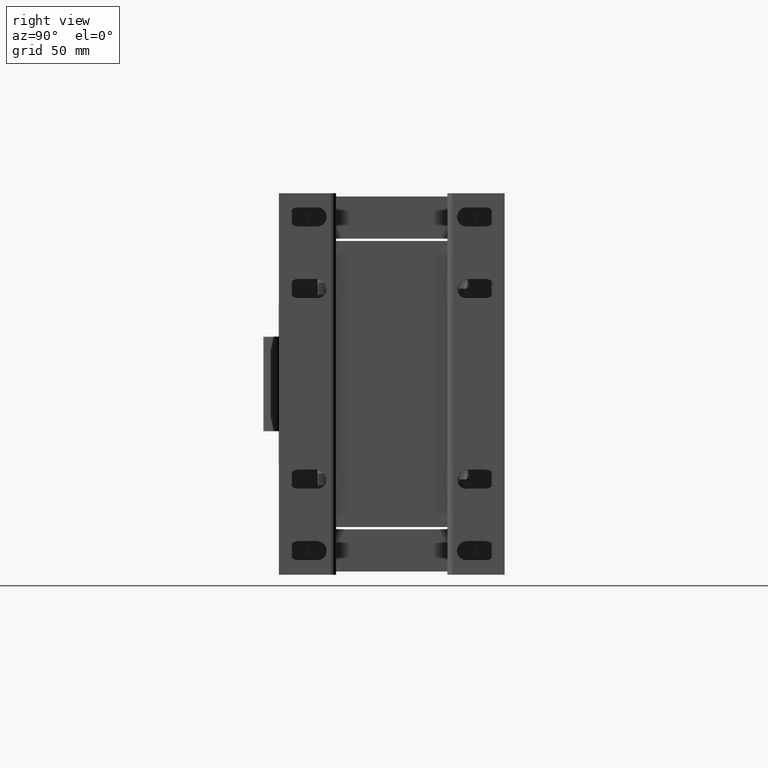
[diagram: clean part render]
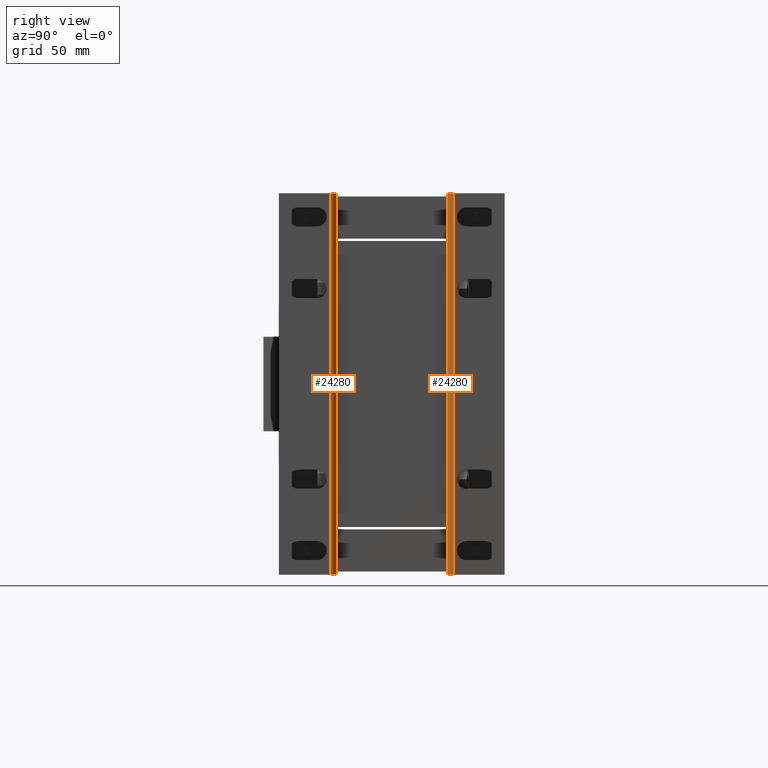
[diagram: same view with one multi-face feature highlighted, each face labeled with its STEP entity id]
A machine part, right view. The highlighted faces form ONE feature: a constant-radius fillet chain: 2 tangent blend faces with common blend radius 3.5 mm. The faces share edges in the B-rep.
Their STEP definitions:
[1] entity #24280 (Cylinder):
#1125=CIRCLE('',#25963,3.5);
#1126=CIRCLE('',#25964,3.5);
#1957=CYLINDRICAL_SURFACE('',#25962,3.5);
#2398=FACE_OUTER_BOUND('',#3760,.T.);
#3760=EDGE_LOOP('',(#16364,#16365,#16366,#16367));
#5218=LINE('',#35453,#7807);
#5219=LINE('',#35457,#7808);
#7807=VECTOR('',#28342,10.);
#7808=VECTOR('',#28345,10.);
#10392=VERTEX_POINT('',#35451);
#10393=VERTEX_POINT('',#35452);
#10394=VERTEX_POINT('',#35454);
#10395=VERTEX_POINT('',#35456);
#12719=EDGE_CURVE('',#10392,#10393,#5218,.T.);
#12720=EDGE_CURVE('',#10394,#10392,#1125,.T.);
#12721=EDGE_CURVE('',#10395,#10394,#5219,.T.);
#12722=EDGE_CURVE('',#10393,#10395,#1126,.T.);
#16364=ORIENTED_EDGE('',*,*,#12719,.F.);
#16365=ORIENTED_EDGE('',*,*,#12720,.F.);
#16366=ORIENTED_EDGE('',*,*,#12721,.F.);
#16367=ORIENTED_EDGE('',*,*,#12722,.F.);
#24280=ADVANCED_FACE('',(#2398),#1957,.T.);
#25962=AXIS2_PLACEMENT_3D('',#35450,#28340,#28341);
#25963=AXIS2_PLACEMENT_3D('',#35455,#28343,#28344);
#25964=AXIS2_PLACEMENT_3D('',#35458,#28346,#28347);
#28340=DIRECTION('center_axis',(-2.96059473233375E-16,0.,-1.));
#28341=DIRECTION('ref_axis',(0.,-1.,0.));
#28342=DIRECTION('',(2.9665254108841E-16,0.,1.));
#28343=DIRECTION('center_axis',(-2.96059473233375E-16,0.,-1.));
#28344=DIRECTION('ref_axis',(0.,-1.,0.));
#28345=DIRECTION('',(-2.96059473233375E-16,0.,-1.));
#28346=DIRECTION('center_axis',(2.96059473233375E-16,0.,1.));
#28347=DIRECTION('ref_axis',(-1.,1.74463618155382E-15,0.));
#35450=CARTESIAN_POINT('Origin',(-50.5,3.5,120.));
#35451=CARTESIAN_POINT('',(-54.,3.50000000000001,5.66691898895079E-15));
#35452=CARTESIAN_POINT('',(-53.9999999999999,3.50000000000001,240.));
#35453=CARTESIAN_POINT('',(-54.,3.50000000000001,120.));
#35454=CARTESIAN_POINT('',(-50.5,-5.55111512312578E-16,0.));
#35455=CARTESIAN_POINT('Origin',(-50.5,3.5,0.));
#35456=CARTESIAN_POINT('',(-50.4999999999999,-5.55111512312578E-16,240.));
#35457=CARTESIAN_POINT('',(-50.5,0.,180.));
#35458=CARTESIAN_POINT('Origin',(-50.4999999999999,3.5,240.));
[2] entity #24280 (Cylinder):
#1125=CIRCLE('',#25963,3.5);
#1126=CIRCLE('',#25964,3.5);
#1957=CYLINDRICAL_SURFACE('',#25962,3.5);
#2398=FACE_OUTER_BOUND('',#3760,.T.);
#3760=EDGE_LOOP('',(#16364,#16365,#16366,#16367));
#5218=LINE('',#35453,#7807);
#5219=LINE('',#35457,#7808);
#7807=VECTOR('',#28342,10.);
#7808=VECTOR('',#28345,10.);
#10392=VERTEX_POINT('',#35451);
#10393=VERTEX_POINT('',#35452);
#10394=VERTEX_POINT('',#35454);
#10395=VERTEX_POINT('',#35456);
#12719=EDGE_CURVE('',#10392,#10393,#5218,.T.);
#12720=EDGE_CURVE('',#10394,#10392,#1125,.T.);
#12721=EDGE_CURVE('',#10395,#10394,#5219,.T.);
#12722=EDGE_CURVE('',#10393,#10395,#1126,.T.);
#16364=ORIENTED_EDGE('',*,*,#12719,.F.);
#16365=ORIENTED_EDGE('',*,*,#12720,.F.);
#16366=ORIENTED_EDGE('',*,*,#12721,.F.);
#16367=ORIENTED_EDGE('',*,*,#12722,.F.);
#24280=ADVANCED_FACE('',(#2398),#1957,.T.);
#25962=AXIS2_PLACEMENT_3D('',#35450,#28340,#28341);
#25963=AXIS2_PLACEMENT_3D('',#35455,#28343,#28344);
#25964=AXIS2_PLACEMENT_3D('',#35458,#28346,#28347);
#28340=DIRECTION('center_axis',(-2.96059473233375E-16,0.,-1.));
#28341=DIRECTION('ref_axis',(0.,-1.,0.));
#28342=DIRECTION('',(2.9665254108841E-16,0.,1.));
#28343=DIRECTION('center_axis',(-2.96059473233375E-16,0.,-1.));
#28344=DIRECTION('ref_axis',(0.,-1.,0.));
#28345=DIRECTION('',(-2.96059473233375E-16,0.,-1.));
#28346=DIRECTION('center_axis',(2.96059473233375E-16,0.,1.));
#28347=DIRECTION('ref_axis',(-1.,1.74463618155382E-15,0.));
#35450=CARTESIAN_POINT('Origin',(-50.5,3.5,120.));
#35451=CARTESIAN_POINT('',(-54.,3.50000000000001,5.66691898895079E-15));
#35452=CARTESIAN_POINT('',(-53.9999999999999,3.50000000000001,240.));
#35453=CARTESIAN_POINT('',(-54.,3.50000000000001,120.));
#35454=CARTESIAN_POINT('',(-50.5,-5.55111512312578E-16,0.));
#35455=CARTESIAN_POINT('Origin',(-50.5,3.5,0.));
#35456=CARTESIAN_POINT('',(-50.4999999999999,-5.55111512312578E-16,240.));
#35457=CARTESIAN_POINT('',(-50.5,0.,180.));
#35458=CARTESIAN_POINT('Origin',(-50.4999999999999,3.5,240.));